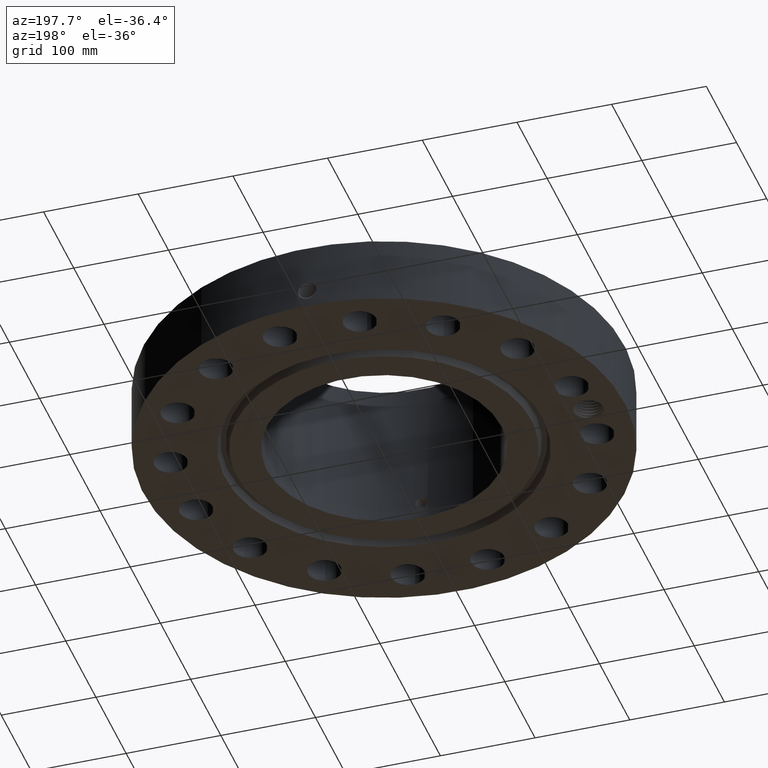
[diagram: clean part render]
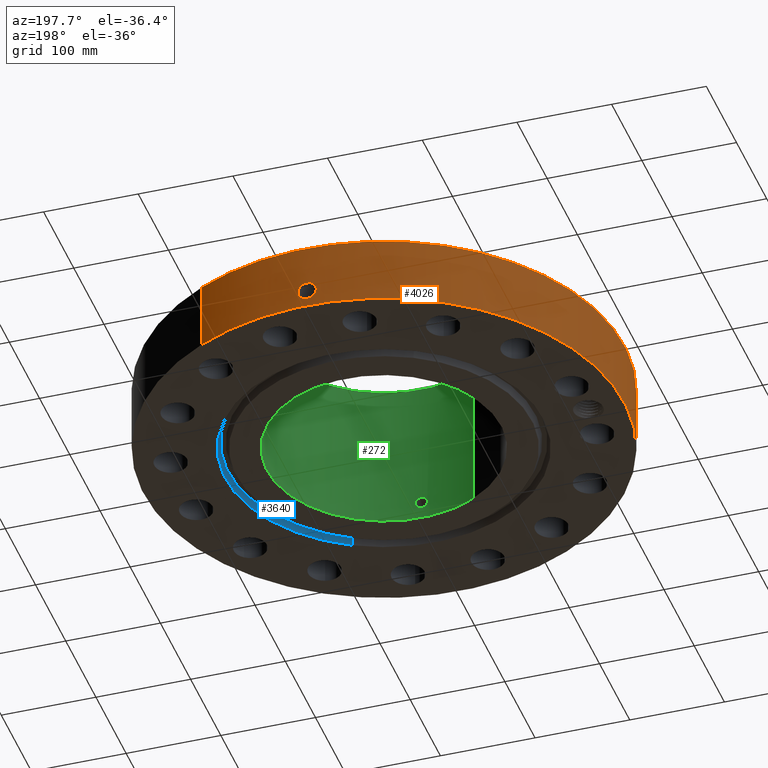
[diagram: same view with three faces highlighted in distinct colors, each labeled with its STEP entity id]
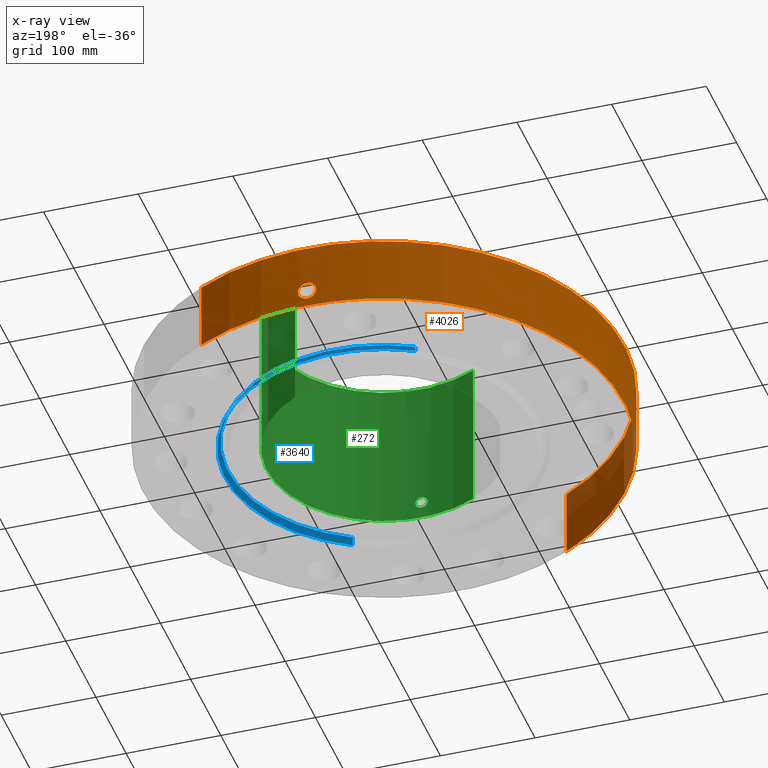
[diagram: x-ray of the same camera — body ghosted, the three highlighted faces saturated]
A machine part, auxiliary view with three faces highlighted in distinct colors.
The next image is the same camera in x-ray (body ghosted, the three faces saturated) — at least one of them is partly hidden behind the body in this view.
Their STEP definitions:

[orange] entity #4026 — the highlighted cylindrical surface (partial cylindrical patch) has radius 254 mm, axis along (0, 0, -1).
#2927=AXIS2_PLACEMENT_3D('Circle Axis2P3D',#2925,#2926,$) ;
#3912=AXIS2_PLACEMENT_3D('Cylinder Axis2P3D',#3909,#3910,#3911) ;
#3916=AXIS2_PLACEMENT_3D('Circle Axis2P3D',#3914,#3915,$) ;
#2920=CARTESIAN_POINT('Vertex',(4.79425538606,8.77582561894,2.81200000001)) ;
#2922=CARTESIAN_POINT('Vertex',(-4.79425538606,-8.77582561894,2.81200000001)) ;
#2925=CARTESIAN_POINT('Axis2P3D Location',(0.,0.,2.81200000001)) ;
#3909=CARTESIAN_POINT('Axis2P3D Location',(0.,0.,3.15600000001)) ;
#3914=CARTESIAN_POINT('Axis2P3D Location',(0.,0.,1.1189649382E-015)) ;
#3918=CARTESIAN_POINT('Vertex',(-4.79425538606,-8.77582561894,1.1189649382E-015)) ;
#3920=CARTESIAN_POINT('Vertex',(4.79425538606,8.77582561894,1.1189649382E-015)) ;
#3923=CARTESIAN_POINT('Line Origine',(-4.79425538606,-8.77582561894,1.40600000001)) ;
#3928=CARTESIAN_POINT('Line Origine',(4.79425538606,8.77582561894,1.40600000001)) ;
#3940=CARTESIAN_POINT('Control Point',(-0.0572119803638,9.99983633817,1.09946159712)) ;
#3941=CARTESIAN_POINT('Control Point',(-0.0385450855308,9.99994313692,1.102521105)) ;
#3942=CARTESIAN_POINT('Control Point',(-0.0196321788618,9.99999861985,1.10408017438)) ;
#3943=CARTESIAN_POINT('Control Point',(-0.000716082856406,9.9999999744,1.10411849925)) ;
#3944=CARTESIAN_POINT('Vertex',(-0.0571990708879,9.99983667007,1.09946399465)) ;
#3946=CARTESIAN_POINT('Vertex',(-0.000715973833986,9.99999997441,1.10411850972)) ;
#3950=CARTESIAN_POINT('Control Point',(-0.0571989729021,9.99983641258,1.09946342361)) ;
#3951=CARTESIAN_POINT('Control Point',(-0.0969250334765,9.99960917987,1.09475689508)) ;
#3952=CARTESIAN_POINT('Control Point',(-0.135932987565,9.99914034756,1.08280858566)) ;
#3953=CARTESIAN_POINT('Control Point',(-0.171781099398,9.99852445387,1.06447443216)) ;
#3954=CARTESIAN_POINT('Vertex',(-0.171781099398,9.99852445387,1.06447443216)) ;
#3958=CARTESIAN_POINT('Control Point',(-0.0304791948593,9.99995355087,0.341149440529)) ;
#3959=CARTESIAN_POINT('Control Point',(-0.0869241455635,9.9997815104,0.348316768002)) ;
#3960=CARTESIAN_POINT('Control Point',(-0.141782076206,9.99921604746,0.365924095968)) ;
#3961=CARTESIAN_POINT('Control Point',(-0.192346208923,9.99830847053,0.393484612387)) ;
#3962=CARTESIAN_POINT('Control Point',(-0.265759602735,9.99658103264,0.45290190289)) ;
#3963=CARTESIAN_POINT('Control Point',(-0.317976377638,9.99497153029,0.529378481115)) ;
#3964=CARTESIAN_POINT('Control Point',(-0.335086742086,9.99439872606,0.562047669)) ;
#3965=CARTESIAN_POINT('Control Point',(-0.369056290245,9.9932108602,0.650252291446)) ;
#3966=CARTESIAN_POINT('Control Point',(-0.376110288275,9.99291610857,0.744477151122)) ;
#3967=CARTESIAN_POINT('Control Point',(-0.3699597648,9.99316024017,0.802001471634)) ;
#3968=CARTESIAN_POINT('Control Point',(-0.340413357703,9.99427827323,0.901203468612)) ;
#3969=CARTESIAN_POINT('Control Point',(-0.280678283764,9.99611879722,0.984359052262)) ;
#3970=CARTESIAN_POINT('Control Point',(-0.248537274152,9.99700573283,1.01702894482)) ;
#3971=CARTESIAN_POINT('Control Point',(-0.211772291121,9.9978373794,1.04402134131)) ;
#3972=CARTESIAN_POINT('Control Point',(-0.171781099398,9.99852445387,1.06447443216)) ;
#3973=CARTESIAN_POINT('Vertex',(-0.0304791948593,9.99995355087,0.341149440529)) ;
#3977=CARTESIAN_POINT('Control Point',(-0.0304791948593,9.99995355087,0.341149440529)) ;
#3978=CARTESIAN_POINT('Control Point',(-0.0203138845361,9.99998453406,0.340868869535)) ;
#3979=CARTESIAN_POINT('Control Point',(-0.0101428499982,10.0000000028,0.340944106366)) ;
#3980=CARTESIAN_POINT('Control Point',(2.72878354152E-006,10.,0.341374667805)) ;
#3981=CARTESIAN_POINT('Vertex',(2.72878353638E-006,10.,0.341374667805)) ;
#3985=CARTESIAN_POINT('Control Point',(0.193088684827,9.99813566424,0.39656383507)) ;
#3986=CARTESIAN_POINT('Control Point',(0.149184656799,9.99898355942,0.371543029261)) ;
#3987=CARTESIAN_POINT('Control Point',(0.101153368029,9.99965493059,0.353607200514)) ;
#3988=CARTESIAN_POINT('Control Point',(0.0508185513758,9.99999998617,0.343531206833)) ;
#3989=CARTESIAN_POINT('Control Point',(2.72878354149E-006,10.,0.341374667805)) ;
#3990=CARTESIAN_POINT('Vertex',(0.193088684827,9.99813566424,0.39656383507)) ;
#3994=CARTESIAN_POINT('Control Point',(0.193088684827,9.99813566424,0.39656383507)) ;
#3995=CARTESIAN_POINT('Control Point',(0.222002362318,9.99757726974,0.413041671869)) ;
#3996=CARTESIAN_POINT('Control Point',(0.249242443822,9.99694663795,0.432399683865)) ;
#3997=CARTESIAN_POINT('Control Point',(0.274404297324,9.9962756448,0.454458252221)) ;
#3998=CARTESIAN_POINT('Control Point',(0.341053053642,9.99430729957,0.526427927716)) ;
#3999=CARTESIAN_POINT('Control Point',(0.383384375976,9.9926835308,0.616296260561)) ;
#4000=CARTESIAN_POINT('Control Point',(0.398208487033,9.99205522805,0.680788173283)) ;
#4001=CARTESIAN_POINT('Control Point',(0.398820880243,9.9920728059,0.807725413447)) ;
#4002=CARTESIAN_POINT('Control Point',(0.349108821587,9.99395183051,0.922787706605)) ;
#4003=CARTESIAN_POINT('Control Point',(0.314057483205,9.99519357389,0.972480029533)) ;
#4004=CARTESIAN_POINT('Control Point',(0.235623931777,9.99747709475,1.04687430535)) ;
#4005=CARTESIAN_POINT('Control Point',(0.138518402501,9.99918909691,1.08948513188)) ;
#4006=CARTESIAN_POINT('Control Point',(0.0927588534453,9.99973433429,1.10155493203)) ;
#4007=CARTESIAN_POINT('Control Point',(0.046096209248,10.0000001193,1.10641422469)) ;
#4008=CARTESIAN_POINT('Control Point',(-2.58579355482E-005,10.,1.10415298432)) ;
#4009=CARTESIAN_POINT('Vertex',(-2.58579355397E-005,10.,1.10415298432)) ;
#4013=CARTESIAN_POINT('Control Point',(-0.000715973824045,9.99999997441,1.1041185097)) ;
#4014=CARTESIAN_POINT('Control Point',(-0.000370940047061,9.99999999911,1.10413606587)) ;
#4015=CARTESIAN_POINT('Control Point',(-2.5857941095E-005,10.,1.10415298431)) ;
#2926=DIRECTION('Axis2P3D Direction',(0.,0.,-0.0393700787402)) ;
#3910=DIRECTION('Axis2P3D Direction',(0.,0.,-0.0393700787402)) ;
#3911=DIRECTION('Axis2P3D XDirection',(0.0188750212049,0.0345504945626,0.)) ;
#3915=DIRECTION('Axis2P3D Direction',(0.,0.,-0.0393700787402)) ;
#3924=DIRECTION('Vector Direction',(0.,0.,-0.0393700787402)) ;
#3929=DIRECTION('Vector Direction',(0.,0.,-0.0393700787402)) ;
#3925=VECTOR('Line Direction',#3924,0.0393700787402) ;
#3930=VECTOR('Line Direction',#3929,0.0393700787402) ;
#3934=ORIENTED_EDGE('',*,*,#3922,.F.) ;
#3935=ORIENTED_EDGE('',*,*,#3927,.T.) ;
#3936=ORIENTED_EDGE('',*,*,#2929,.T.) ;
#3937=ORIENTED_EDGE('',*,*,#3932,.F.) ;
#4018=ORIENTED_EDGE('',*,*,#3948,.F.) ;
#4019=ORIENTED_EDGE('',*,*,#3956,.T.) ;
#4020=ORIENTED_EDGE('',*,*,#3975,.F.) ;
#4021=ORIENTED_EDGE('',*,*,#3983,.T.) ;
#4022=ORIENTED_EDGE('',*,*,#3992,.F.) ;
#4023=ORIENTED_EDGE('',*,*,#4011,.T.) ;
#4024=ORIENTED_EDGE('',*,*,#4016,.F.) ;
#4025=FACE_BOUND('',#4017,.T.) ;
#4026=ADVANCED_FACE('PartBody',(#3938,#4025),#3913,.T.) ;
#3939=B_SPLINE_CURVE_WITH_KNOTS('',3,(#3940,#3941,#3942,#3943),.UNSPECIFIED.,.F.,.U.,(4,4),(4.42272723006,6.5212960741),.UNSPECIFIED.) ;
#3949=B_SPLINE_CURVE_WITH_KNOTS('',3,(#3950,#3951,#3952,#3953),.UNSPECIFIED.,.F.,.U.,(4,4),(0.,4.49490140071),.UNSPECIFIED.) ;
#3957=B_SPLINE_CURVE_WITH_KNOTS('',5,(#3958,#3959,#3960,#3961,#3962,#3963,#3964,#3965,#3966,#3967,#3968,#3969,#3970,#3971,#3972),.UNSPECIFIED.,.F.,.U.,(6,3,3,3,6),(0.,9.88848123755,16.4590836557,26.8430241205,35.200343213),.UNSPECIFIED.) ;
#3976=B_SPLINE_CURVE_WITH_KNOTS('',3,(#3977,#3978,#3979,#3980),.UNSPECIFIED.,.F.,.U.,(4,4),(0.,1.06033163712),.UNSPECIFIED.) ;
#3984=B_SPLINE_CURVE_WITH_KNOTS('',4,(#3985,#3986,#3987,#3988,#3989),.UNSPECIFIED.,.F.,.U.,(5,5),(0.,7.08113035028),.UNSPECIFIED.) ;
#3993=B_SPLINE_CURVE_WITH_KNOTS('',5,(#3994,#3995,#3996,#3997,#3998,#3999,#4000,#4001,#4002,#4003,#4004,#4005,#4006,#4007,#4008),.UNSPECIFIED.,.F.,.U.,(6,3,3,3,6),(0.,5.82923484696,17.127664567,27.7869737193,36.4081447397),.UNSPECIFIED.) ;
#4012=B_SPLINE_CURVE_WITH_KNOTS('',2,(#4013,#4014,#4015),.UNSPECIFIED.,.F.,.U.,(3,3),(1.03893929527,1.06474049784),.UNSPECIFIED.) ;
#2928=CIRCLE('generated circle',#2927,10.) ;
#3917=CIRCLE('generated circle',#3916,10.) ;
#3913=CYLINDRICAL_SURFACE('generated cylinder',#3912,10.) ;
#2929=EDGE_CURVE('',#2923,#2921,#2928,.T.) ;
#3922=EDGE_CURVE('',#3919,#3921,#3917,.T.) ;
#3927=EDGE_CURVE('',#3919,#2923,#3926,.F.) ;
#3932=EDGE_CURVE('',#3921,#2921,#3931,.F.) ;
#3948=EDGE_CURVE('',#3945,#3947,#3939,.T.) ;
#3956=EDGE_CURVE('',#3945,#3955,#3949,.T.) ;
#3975=EDGE_CURVE('',#3974,#3955,#3957,.T.) ;
#3983=EDGE_CURVE('',#3974,#3982,#3976,.T.) ;
#3992=EDGE_CURVE('',#3991,#3982,#3984,.T.) ;
#4011=EDGE_CURVE('',#3991,#4010,#3993,.T.) ;
#4016=EDGE_CURVE('',#3947,#4010,#4012,.T.) ;
#3933=EDGE_LOOP('',(#3934,#3935,#3936,#3937)) ;
#4017=EDGE_LOOP('',(#4018,#4019,#4020,#4021,#4022,#4023,#4024)) ;
#3938=FACE_OUTER_BOUND('',#3933,.T.) ;
#3926=LINE('Line',#3923,#3925) ;
#3931=LINE('Line',#3928,#3930) ;
#2921=VERTEX_POINT('',#2920) ;
#2923=VERTEX_POINT('',#2922) ;
#3919=VERTEX_POINT('',#3918) ;
#3921=VERTEX_POINT('',#3920) ;
#3945=VERTEX_POINT('',#3944) ;
#3947=VERTEX_POINT('',#3946) ;
#3955=VERTEX_POINT('',#3954) ;
#3974=VERTEX_POINT('',#3973) ;
#3982=VERTEX_POINT('',#3981) ;
#3991=VERTEX_POINT('',#3990) ;
#4010=VERTEX_POINT('',#4009) ;

[blue] entity #3640 — the highlighted conical surface has half-angle 23 deg.
#2609=AXIS2_PLACEMENT_3D('Circle Axis2P3D',#2607,#2608,$) ;
#3613=AXIS2_PLACEMENT_3D('Cone Axis2P3D',#3610,#3611,#3612) ;
#3617=AXIS2_PLACEMENT_3D('Circle Axis2P3D',#3615,#3616,$) ;
#2607=CARTESIAN_POINT('Axis2P3D Location',(0.,0.,0.293721933856)) ;
#2611=CARTESIAN_POINT('Vertex',(3.1089894892,-5.69096708691,0.293721933856)) ;
#2613=CARTESIAN_POINT('Vertex',(-3.1089894892,5.69096708691,0.293721933856)) ;
#3610=CARTESIAN_POINT('Axis2P3D Location',(0.,0.,0.293721933856)) ;
#3615=CARTESIAN_POINT('Axis2P3D Location',(0.,0.,0.)) ;
#3619=CARTESIAN_POINT('Vertex',(-3.16876309742,5.80038194284,0.)) ;
#3621=CARTESIAN_POINT('Vertex',(3.16876309742,-5.80038194284,-3.84644197508E-016)) ;
#3624=CARTESIAN_POINT('Line Origine',(3.13887629331,-5.74567451487,0.146860966928)) ;
#3629=CARTESIAN_POINT('Line Origine',(-3.13887629331,5.74567451487,0.146860966928)) ;
#2608=DIRECTION('Axis2P3D Direction',(0.,0.,0.0393700787402)) ;
#3611=DIRECTION('Axis2P3D Direction',(-0.,-0.,-0.0393700787402)) ;
#3612=DIRECTION('Axis2P3D XDirection',(0.0188750212049,-0.0345504945626,0.)) ;
#3616=DIRECTION('Axis2P3D Direction',(0.,0.,-0.0393700787402)) ;
#3625=DIRECTION('Vector Direction',(0.00737505833565,-0.0134999537303,-0.0362403485611)) ;
#3630=DIRECTION('Vector Direction',(-0.00737505833565,0.0134999537303,-0.0362403485611)) ;
#3626=VECTOR('Line Direction',#3625,0.0393700787402) ;
#3631=VECTOR('Line Direction',#3630,0.0393700787402) ;
#3635=ORIENTED_EDGE('',*,*,#3623,.T.) ;
#3636=ORIENTED_EDGE('',*,*,#3628,.T.) ;
#3637=ORIENTED_EDGE('',*,*,#2615,.T.) ;
#3638=ORIENTED_EDGE('',*,*,#3633,.F.) ;
#3640=ADVANCED_FACE('PartBody',(#3639),#3614,.F.) ;
#2610=CIRCLE('generated circle',#2609,6.48482243614) ;
#3618=CIRCLE('generated circle',#3617,6.60950000003) ;
#3614=CONICAL_SURFACE('Cone',#3613,6.48482243614,0.401425727959) ;
#2615=EDGE_CURVE('',#2612,#2614,#2610,.T.) ;
#3623=EDGE_CURVE('',#3620,#3622,#3618,.T.) ;
#3628=EDGE_CURVE('',#3622,#2612,#3627,.F.) ;
#3633=EDGE_CURVE('',#3620,#2614,#3632,.F.) ;
#3634=EDGE_LOOP('',(#3635,#3636,#3637,#3638)) ;
#3639=FACE_OUTER_BOUND('',#3634,.T.) ;
#3627=LINE('Line',#3624,#3626) ;
#3632=LINE('Line',#3629,#3631) ;
#2612=VERTEX_POINT('',#2611) ;
#2614=VERTEX_POINT('',#2613) ;
#3620=VERTEX_POINT('',#3619) ;
#3622=VERTEX_POINT('',#3621) ;

[green] entity #272 — the highlighted cylindrical surface (partial cylindrical patch) has radius 123.825 mm, axis along (0, 0, -1).
#232=AXIS2_PLACEMENT_3D('Cylinder Axis2P3D',#229,#230,#231) ;
#236=AXIS2_PLACEMENT_3D('Circle Axis2P3D',#234,#235,$) ;
#252=AXIS2_PLACEMENT_3D('Circle Axis2P3D',#250,#251,$) ;
#81=CARTESIAN_POINT('Control Point',(0.219395640473,-4.87006063136,0.630143615351)) ;
#82=CARTESIAN_POINT('Control Point',(0.20692174464,-4.87062257885,0.607310302187)) ;
#83=CARTESIAN_POINT('Control Point',(0.191478385755,-4.87127828062,0.586101521471)) ;
#84=CARTESIAN_POINT('Control Point',(0.173345550542,-4.87197707006,0.567030143543)) ;
#85=CARTESIAN_POINT('Control Point',(0.112139254388,-4.87399811779,0.517552792442)) ;
#86=CARTESIAN_POINT('Control Point',(0.0349864250839,-4.87531117771,0.494027511135)) ;
#87=CARTESIAN_POINT('Control Point',(-0.0195555059181,-4.87540934726,0.492387755257)) ;
#88=CARTESIAN_POINT('Control Point',(-0.124139286235,-4.87396422885,0.517527517732)) ;
#89=CARTESIAN_POINT('Control Point',(-0.203183446135,-4.87097271107,0.59043335608)) ;
#90=CARTESIAN_POINT('Control Point',(-0.232161818554,-4.86949971395,0.636645095458)) ;
#91=CARTESIAN_POINT('Control Point',(-0.255832358496,-4.86828683285,0.714802419166)) ;
#92=CARTESIAN_POINT('Control Point',(-0.248297208404,-4.86867260612,0.794193995587)) ;
#93=CARTESIAN_POINT('Control Point',(-0.242063097654,-4.86899647662,0.820779567029)) ;
#94=CARTESIAN_POINT('Control Point',(-0.23232434299,-4.86947819488,0.846190553441)) ;
#95=CARTESIAN_POINT('Control Point',(-0.219395640473,-4.87006063136,0.869856384655)) ;
#96=CARTESIAN_POINT('Vertex',(0.219395640473,-4.87006063136,0.630143615351)) ;
#98=CARTESIAN_POINT('Vertex',(-0.219395640473,-4.87006063136,0.869856384655)) ;
#206=CARTESIAN_POINT('Control Point',(-0.219395640473,-4.87006063136,0.869856384655)) ;
#207=CARTESIAN_POINT('Control Point',(-0.206921744644,-4.87062257885,0.892689697812)) ;
#208=CARTESIAN_POINT('Control Point',(-0.191478385765,-4.87127828061,0.913898478521)) ;
#209=CARTESIAN_POINT('Control Point',(-0.173345550531,-4.87197707006,0.932969856471)) ;
#210=CARTESIAN_POINT('Control Point',(-0.11213925439,-4.87399811779,0.982447207559)) ;
#211=CARTESIAN_POINT('Control Point',(-0.0349864251063,-4.87531117771,1.00597248886)) ;
#212=CARTESIAN_POINT('Control Point',(0.0195555059343,-4.87540934725,1.00761224474)) ;
#213=CARTESIAN_POINT('Control Point',(0.124139286215,-4.87396422885,0.982472482275)) ;
#214=CARTESIAN_POINT('Control Point',(0.203183446095,-4.87097271107,0.909566643963)) ;
#215=CARTESIAN_POINT('Control Point',(0.232161818567,-4.86949971395,0.863354904502)) ;
#216=CARTESIAN_POINT('Control Point',(0.2558323585,-4.86828683285,0.785197580798)) ;
#217=CARTESIAN_POINT('Control Point',(0.248297208401,-4.86867260612,0.705806004379)) ;
#218=CARTESIAN_POINT('Control Point',(0.24206309767,-4.86899647662,0.679220433017)) ;
#219=CARTESIAN_POINT('Control Point',(0.232324343,-4.86947819488,0.653809446584)) ;
#220=CARTESIAN_POINT('Control Point',(0.219395640473,-4.87006063136,0.630143615351)) ;
#229=CARTESIAN_POINT('Axis2P3D Location',(0.,0.,3.15600000001)) ;
#234=CARTESIAN_POINT('Axis2P3D Location',(0.,0.,6.31200000003)) ;
#238=CARTESIAN_POINT('Vertex',(2.3371995007,4.27821498923,6.31200000003)) ;
#240=CARTESIAN_POINT('Vertex',(-2.3371995007,-4.27821498923,6.31200000003)) ;
#243=CARTESIAN_POINT('Line Origine',(2.3371995007,4.27821498923,3.15600000001)) ;
#247=CARTESIAN_POINT('Vertex',(2.3371995007,4.27821498923,-1.79034390113E-014)) ;
#250=CARTESIAN_POINT('Axis2P3D Location',(0.,0.,-1.90224039495E-014)) ;
#254=CARTESIAN_POINT('Vertex',(-2.3371995007,-4.27821498923,-1.79034390113E-014)) ;
#257=CARTESIAN_POINT('Line Origine',(-2.3371995007,-4.27821498923,3.15600000001)) ;
#230=DIRECTION('Axis2P3D Direction',(0.,0.,-0.0393700787402)) ;
#231=DIRECTION('Axis2P3D XDirection',(-0.0188750212049,-0.0345504945626,0.)) ;
#235=DIRECTION('Axis2P3D Direction',(0.,0.,-0.0393700787402)) ;
#244=DIRECTION('Vector Direction',(0.,0.,-0.0393700787402)) ;
#251=DIRECTION('Axis2P3D Direction',(0.,0.,-0.0393700787402)) ;
#258=DIRECTION('Vector Direction',(0.,0.,-0.0393700787402)) ;
#245=VECTOR('Line Direction',#244,0.0393700787402) ;
#259=VECTOR('Line Direction',#258,0.0393700787402) ;
#263=ORIENTED_EDGE('',*,*,#242,.F.) ;
#264=ORIENTED_EDGE('',*,*,#249,.T.) ;
#265=ORIENTED_EDGE('',*,*,#256,.T.) ;
#266=ORIENTED_EDGE('',*,*,#261,.F.) ;
#269=ORIENTED_EDGE('',*,*,#100,.F.) ;
#270=ORIENTED_EDGE('',*,*,#221,.F.) ;
#271=FACE_BOUND('',#268,.T.) ;
#272=ADVANCED_FACE('PartBody',(#267,#271),#233,.F.) ;
#80=B_SPLINE_CURVE_WITH_KNOTS('',5,(#81,#82,#83,#84,#85,#86,#87,#88,#89,#90,#91,#92,#93,#94,#95),.UNSPECIFIED.,.F.,.U.,(6,3,3,3,6),(0.,4.6741316177,14.0220348662,23.3720177475,28.2165713669),.UNSPECIFIED.) ;
#205=B_SPLINE_CURVE_WITH_KNOTS('',5,(#206,#207,#208,#209,#210,#211,#212,#213,#214,#215,#216,#217,#218,#219,#220),.UNSPECIFIED.,.F.,.U.,(6,3,3,3,6),(0.,4.67413161615,14.0220348629,23.3720177398,28.216571363),.UNSPECIFIED.) ;
#237=CIRCLE('generated circle',#236,4.87500000002) ;
#253=CIRCLE('generated circle',#252,4.87500000002) ;
#233=CYLINDRICAL_SURFACE('generated cylinder',#232,4.87500000002) ;
#100=EDGE_CURVE('',#97,#99,#80,.T.) ;
#221=EDGE_CURVE('',#99,#97,#205,.T.) ;
#242=EDGE_CURVE('',#239,#241,#237,.T.) ;
#249=EDGE_CURVE('',#239,#248,#246,.T.) ;
#256=EDGE_CURVE('',#248,#255,#253,.T.) ;
#261=EDGE_CURVE('',#241,#255,#260,.T.) ;
#262=EDGE_LOOP('',(#263,#264,#265,#266)) ;
#268=EDGE_LOOP('',(#269,#270)) ;
#267=FACE_OUTER_BOUND('',#262,.T.) ;
#246=LINE('Line',#243,#245) ;
#260=LINE('Line',#257,#259) ;
#97=VERTEX_POINT('',#96) ;
#99=VERTEX_POINT('',#98) ;
#239=VERTEX_POINT('',#238) ;
#241=VERTEX_POINT('',#240) ;
#248=VERTEX_POINT('',#247) ;
#255=VERTEX_POINT('',#254) ;